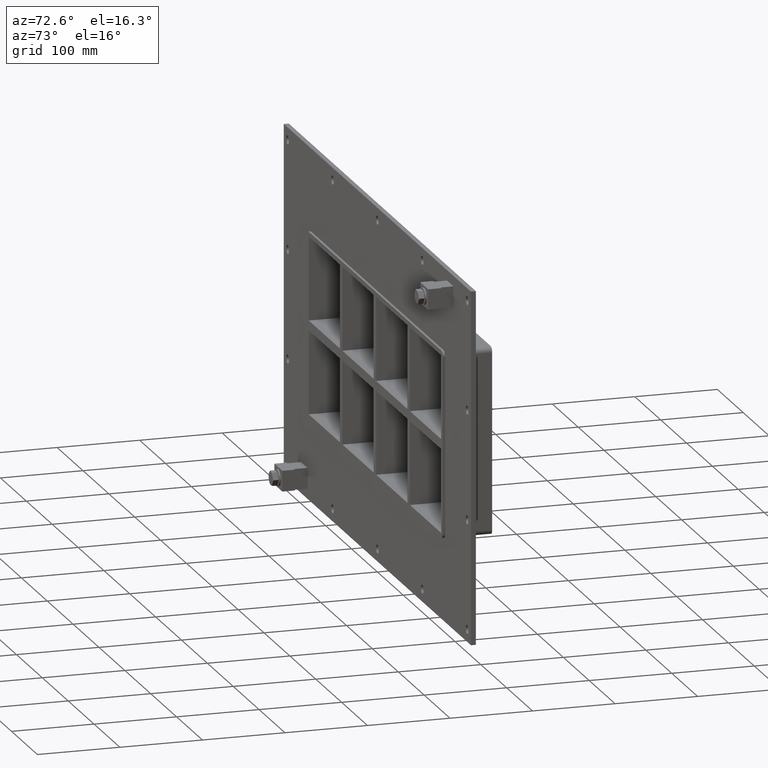
[diagram: clean part render]
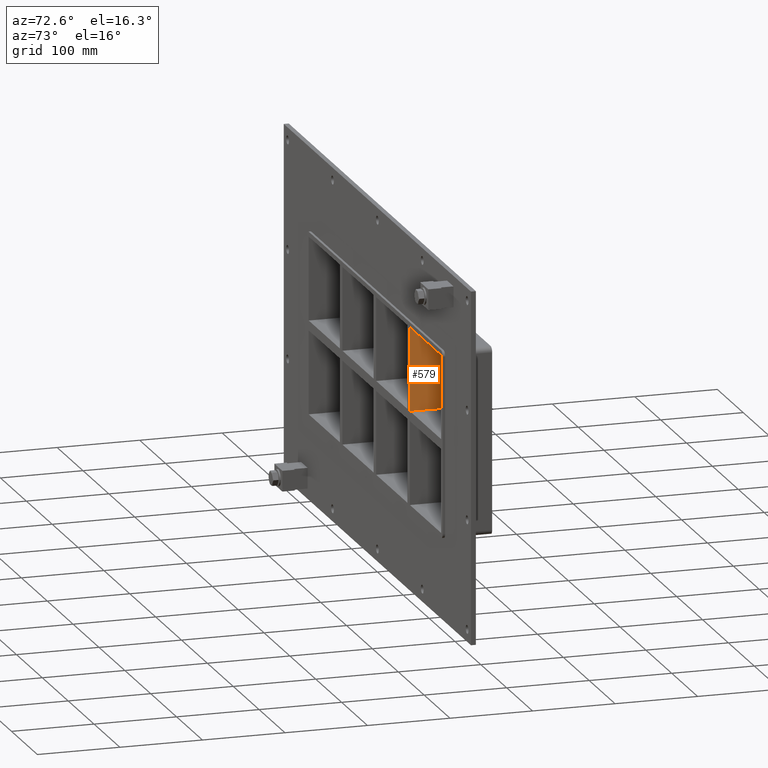
[diagram: same view with one face highlighted and labeled with its STEP entity id]
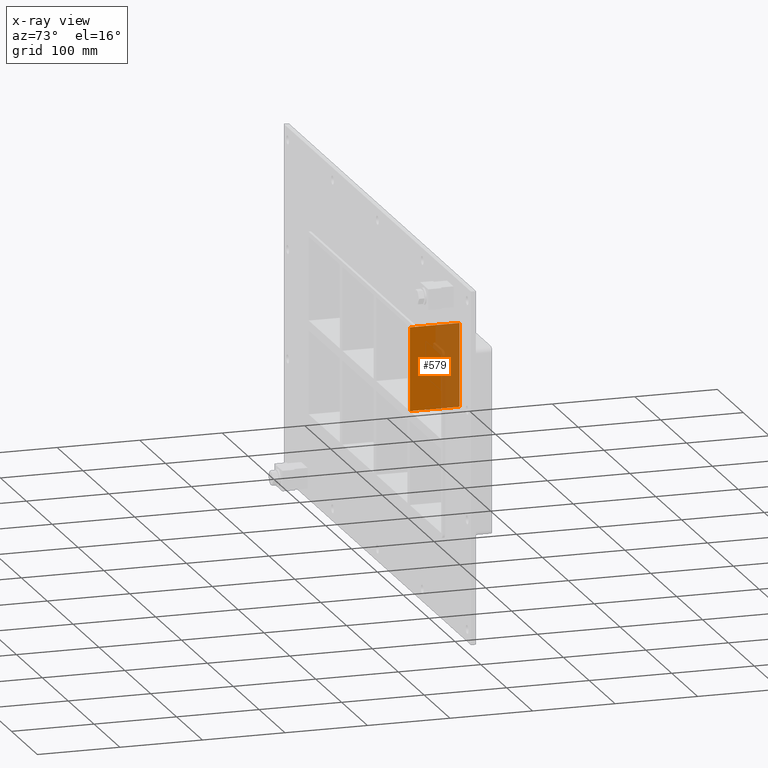
[diagram: x-ray of the same camera — body ghosted, the highlighted face saturated]
A machine part, auxiliary view. The second image highlights one B-rep face of the part: STEP entity #579.
The next image is the same camera in x-ray: the body ghosted, the highlighted face saturated — about 41% of this face is hidden behind the body in this view.
In plain terms, the highlighted planar face has unit normal (1, 0, 0).
Its self-contained STEP definition (entity closure, byte-faithful):
#540=CARTESIAN_POINT('',(135.50000000000728,-3.0,106.99999999999996));
#541=DIRECTION('',(1.0,0.0,0.0));
#542=DIRECTION('',(0.0,0.0,-1.0));
#543=AXIS2_PLACEMENT_3D('',#540,#541,#542);
#544=PLANE('',#543);
#545=CARTESIAN_POINT('',(135.50000000000728,57.0,5.999999999999091));
#546=VERTEX_POINT('',#545);
#547=CARTESIAN_POINT('',(135.50000000000728,-3.0,5.999999999999091));
#548=VERTEX_POINT('',#547);
#549=CARTESIAN_POINT('',(135.50000000000728,57.0,5.999999999999091));
#550=DIRECTION('',(0.0,-1.0,0.0));
#551=VECTOR('',#550,60.0);
#552=LINE('',#549,#551);
#553=EDGE_CURVE('',#546,#548,#552,.T.);
#554=ORIENTED_EDGE('',*,*,#553,.F.);
#555=CARTESIAN_POINT('',(135.50000000000728,57.0,106.99999999999996));
#556=VERTEX_POINT('',#555);
#557=CARTESIAN_POINT('',(135.50000000000728,57.0,106.99999999999996));
#558=DIRECTION('',(0.0,0.0,-1.0));
#559=VECTOR('',#558,101.00000000000087);
#560=LINE('',#557,#559);
#561=EDGE_CURVE('',#556,#546,#560,.T.);
#562=ORIENTED_EDGE('',*,*,#561,.F.);
#563=CARTESIAN_POINT('',(135.50000000000728,-3.0,106.99999999999996));
#564=VERTEX_POINT('',#563);
#565=CARTESIAN_POINT('',(135.50000000000728,-3.0,106.99999999999996));
#566=DIRECTION('',(0.0,1.0,0.0));
#567=VECTOR('',#566,60.000000000000007);
#568=LINE('',#565,#567);
#569=EDGE_CURVE('',#564,#556,#568,.T.);
#570=ORIENTED_EDGE('',*,*,#569,.F.);
#571=CARTESIAN_POINT('',(135.50000000000728,-3.0,106.99999999999996));
#572=DIRECTION('',(0.0,0.0,-1.0));
#573=VECTOR('',#572,101.00000000000087);
#574=LINE('',#571,#573);
#575=EDGE_CURVE('',#564,#548,#574,.T.);
#576=ORIENTED_EDGE('',*,*,#575,.T.);
#577=EDGE_LOOP('',(#554,#562,#570,#576));
#578=FACE_OUTER_BOUND('',#577,.T.);
#579=ADVANCED_FACE('',(#578),#544,.T.);